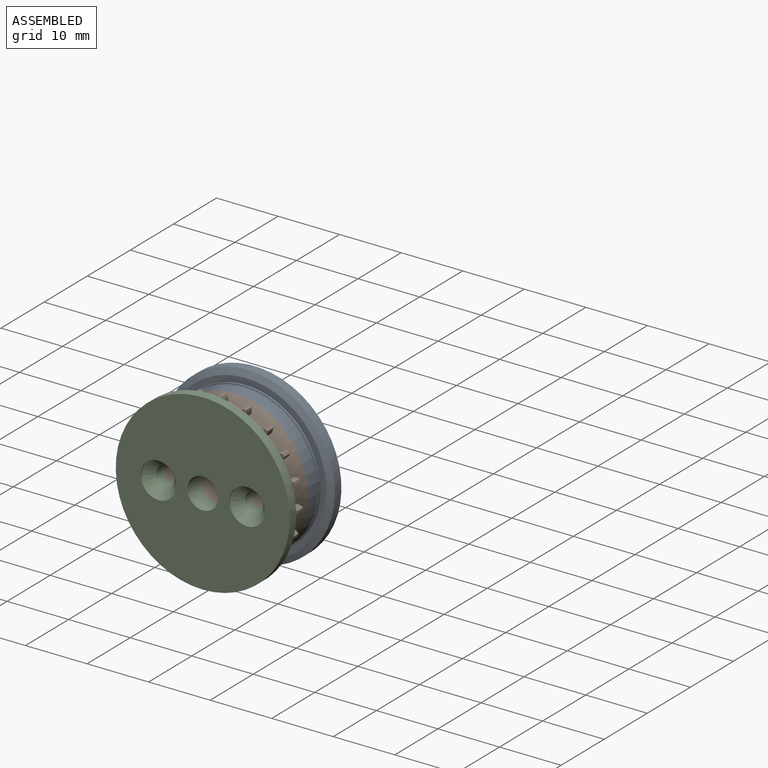
[diagram: assembled view]
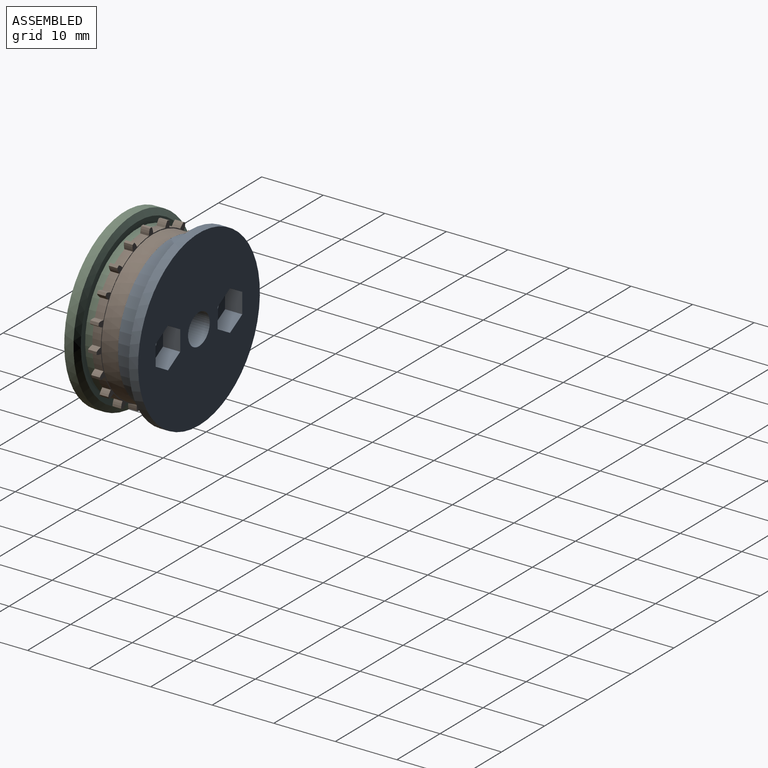
[diagram: assembled view, second angle]
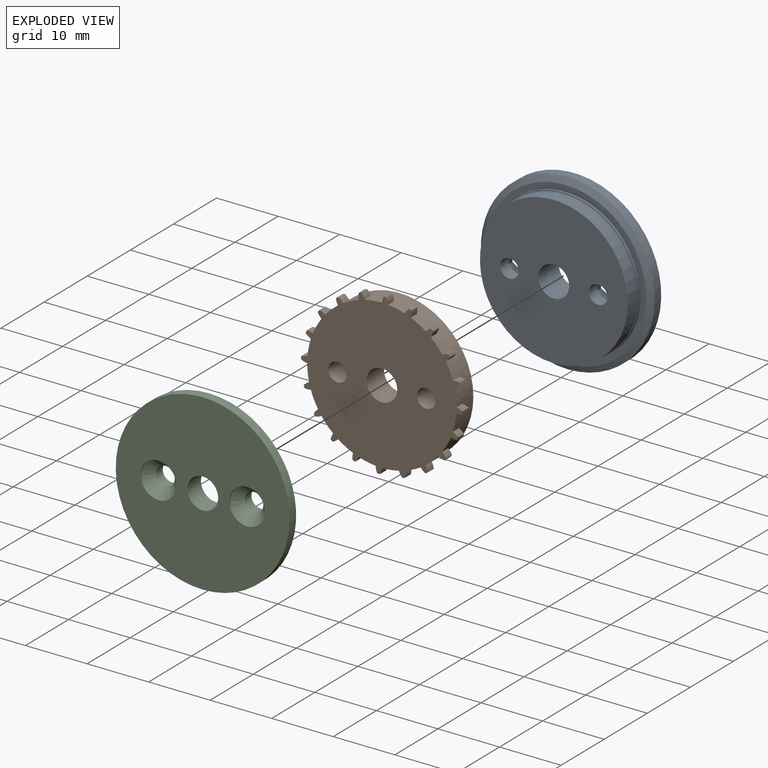
[diagram: exploded view]
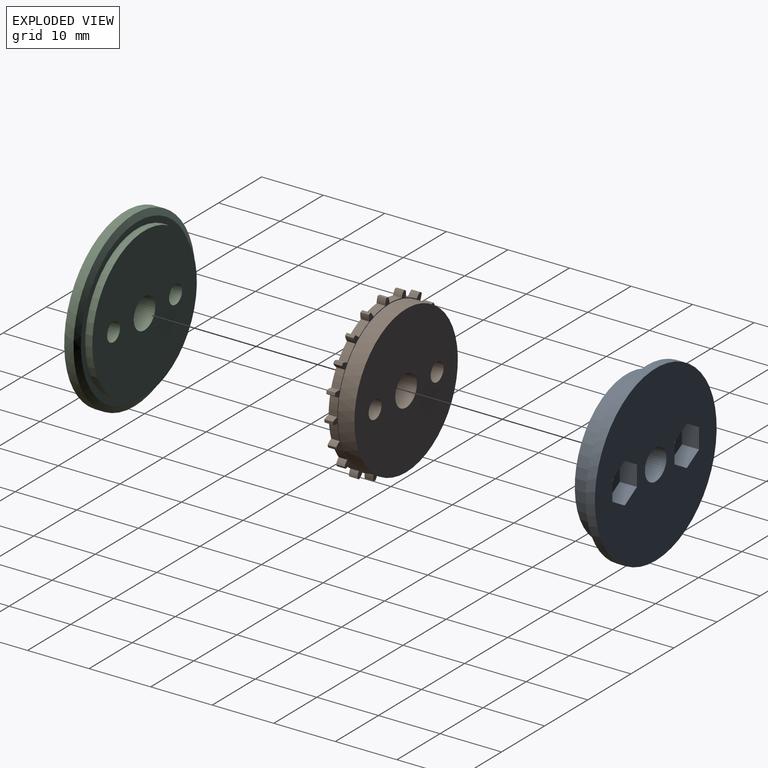
[diagram: exploded view, second angle]
ASSEMBLY  parts=3 mates=2
PART A: 25 faces, bbox 28.3x4.8x28.3 mm
  f0: plane 28.26x28.26mm, normal (0,1,0), area 551.1mm2, adj f1,f7,f9,f10,f11,f12,f13,f14
  f1: cylinder r=14.13mm len=28.26mm, axis (0,-1,0), area 133.1mm2, adj f0,f8
  f2: plane 26.26x26.26mm, normal (0,-1,0), area 79.3mm2, adj f3,f8
  f3: cylinder r=12.13mm len=24.26mm, axis (0,-1,0), area 30.5mm2, adj f2,f4
  f4: plane 24.26x24.26mm, normal (0,-1,0), area 9.7mm2, adj f3,f5
  f5: cylinder r=12mm len=24mm, axis (0,-1,0), area 177.2mm2, adj f4,f6
  f6: plane 24x24mm, normal (0,-1,0), area 418.6mm2, adj f5,f7,f23,f24
  f7: cylinder r=2.5mm len=5mm, axis (0,1,0), area 74.6mm2, adj f0,f6
  f8: cone r=13.13mm half-angle=63.4deg, axis (0,1,0), area 95.7mm2, adj f1,f2
  f9: plane 2.85x2.8mm, normal (-0.5,0,0.87), area 9.2mm2, adj f0,f10,f14,f15
  f10: plane 2.85x2.8mm, normal (0.5,0,0.87), area 9.2mm2, adj f0,f9,f11,f15
  f11: plane 3.29x2.8mm, normal (1,0,0), area 9.2mm2, adj f0,f10,f12,f15
  f12: plane 2.85x2.8mm, normal (0.5,0,-0.87), area 9.2mm2, adj f0,f11,f13,f15
  f13: plane 2.85x2.8mm, normal (-0.5,0,-0.87), area 9.2mm2, adj f0,f12,f14,f15
  f14: plane 3.29x2.8mm, normal (-1,0,0), area 9.2mm2, adj f0,f9,f13,f15
  f15: plane 6.58x5.7mm, normal (0,1,0), area 21.1mm2, adj f9,f10,f11,f12,f13,f14,f23
  f16: plane 2.85x2.8mm, normal (-0.5,0,-0.87), area 9.2mm2, adj f0,f17,f21,f22
  f17: plane 3.29x2.8mm, normal (-1,0,0), area 9.2mm2, adj f0,f16,f18,f22
  f18: plane 2.85x2.8mm, normal (-0.5,0,0.87), area 9.2mm2, adj f0,f17,f19,f22
  f19: plane 2.85x2.8mm, normal (0.5,0,0.87), area 9.2mm2, adj f0,f18,f20,f22
  f20: plane 3.29x2.8mm, normal (1,0,0), area 9.2mm2, adj f0,f19,f21,f22
  f21: plane 2.85x2.8mm, normal (0.5,0,-0.87), area 9.2mm2, adj f0,f16,f20,f22
  f22: plane 6.58x5.7mm, normal (0,1,0), area 21.1mm2, adj f16,f17,f18,f19,f20,f21,f24
  f23: cylinder r=1.5mm len=3mm, axis (0,1,0), area 18.4mm2, adj f6,f15
  f24: cylinder r=1.5mm len=3mm, axis (0,1,0), area 18.4mm2, adj f6,f22
PART B: 87 faces, bbox 26.2x4.1x26.2 mm
  f0: cylinder r=2.43mm len=1.4mm, axis (0,-1,0), area 1.5mm2, adj f1,f79,f80,f81
  f1: cylinder r=12.13mm len=2.55mm, axis (0,-1,0), area 3.9mm2, adj f0,f2,f80,f81
  f2: cylinder r=2.43mm len=1.4mm, axis (0,-1,0), area 1.5mm2, adj f1,f3,f80,f81
  f3: cylinder r=13.13mm len=1.4mm, axis (0,-1,0), area 0.6mm2, adj f2,f4,f80,f81
  f4: cylinder r=2.43mm len=1.4mm, axis (0,-1,0), area 1.5mm2, adj f3,f5,f80,f81
  f5: cylinder r=12.13mm len=2.06mm, axis (0,-1,0), area 3.9mm2, adj f4,f6,f80,f81
  f6: cylinder r=2.43mm len=1.4mm, axis (0,-1,0), area 1.5mm2, adj f5,f7,f80,f81
  f7: cylinder r=13.13mm len=1.4mm, axis (0,-1,0), area 0.6mm2, adj f6,f8,f80,f81
  f8: cylinder r=2.43mm len=1.4mm, axis (0,-1,0), area 1.5mm2, adj f7,f9,f80,f81
  f9: cylinder r=12.13mm len=2.44mm, axis (0,-1,0), area 3.9mm2, adj f8,f10,f80,f81
  f10: cylinder r=2.43mm len=1.4mm, axis (0,-1,0), area 1.5mm2, adj f9,f11,f80,f81
  f11: cylinder r=13.13mm len=1.4mm, axis (0,-1,0), area 0.6mm2, adj f10,f12,f80,f81
  f12: cylinder r=2.43mm len=1.4mm, axis (0,-1,0), area 1.5mm2, adj f11,f13,f80,f81
  f13: cylinder r=12.13mm len=2.75mm, axis (0,-1,0), area 3.9mm2, adj f12,f14,f80,f81
  f14: cylinder r=2.43mm len=1.4mm, axis (0,-1,0), area 1.5mm2, adj f13,f15,f80,f81
  f15: cylinder r=13.13mm len=1.4mm, axis (0,-1,0), area 0.6mm2, adj f14,f16,f80,f81
  f16: cylinder r=2.43mm len=1.4mm, axis (0,-1,0), area 1.5mm2, adj f15,f17,f80,f81
  f17: cylinder r=12.13mm len=2.79mm, axis (0,-1,0), area 3.9mm2, adj f16,f18,f80,f81
  f18: cylinder r=2.43mm len=1.4mm, axis (0,-1,0), area 1.5mm2, adj f17,f19,f80,f81
  f19: cylinder r=13.13mm len=1.4mm, axis (0,-1,0), area 0.6mm2, adj f18,f20,f80,f81
  f20: cylinder r=2.43mm len=1.4mm, axis (0,-1,0), area 1.5mm2, adj f19,f21,f80,f81
  f21: cylinder r=12.13mm len=2.55mm, axis (0,-1,0), area 3.9mm2, adj f20,f22,f80,f81
  f22: cylinder r=2.43mm len=1.4mm, axis (0,-1,0), area 1.5mm2, adj f21,f23,f80,f81
  f23: cylinder r=13.13mm len=1.4mm, axis (0,-1,0), area 0.6mm2, adj f22,f24,f80,f81
  f24: cylinder r=2.43mm len=1.4mm, axis (0,-1,0), area 1.5mm2, adj f23,f25,f80,f81
  f25: cylinder r=12.13mm len=2.06mm, axis (0,-1,0), area 3.9mm2, adj f24,f26,f80,f81
  f26: cylinder r=2.43mm len=1.4mm, axis (0,-1,0), area 1.5mm2, adj f25,f27,f80,f81
  f27: cylinder r=13.13mm len=1.4mm, axis (0,-1,0), area 0.6mm2, adj f26,f28,f80,f81
  f28: cylinder r=2.43mm len=1.4mm, axis (0,-1,0), area 1.5mm2, adj f27,f29,f80,f81
  f29: cylinder r=12.13mm len=2.44mm, axis (0,-1,0), area 3.9mm2, adj f28,f30,f80,f81
  f30: cylinder r=2.43mm len=1.4mm, axis (0,-1,0), area 1.5mm2, adj f29,f31,f80,f81
  f31: cylinder r=13.13mm len=1.4mm, axis (0,-1,0), area 0.6mm2, adj f30,f32,f80,f81
  f32: cylinder r=2.43mm len=1.4mm, axis (0,-1,0), area 1.5mm2, adj f31,f33,f80,f81
  f33: cylinder r=12.13mm len=2.75mm, axis (0,-1,0), area 3.9mm2, adj f32,f34,f80,f81
  f34: cylinder r=2.43mm len=1.4mm, axis (0,-1,0), area 1.5mm2, adj f33,f35,f80,f81
  f35: cylinder r=13.13mm len=1.4mm, axis (0,-1,0), area 0.6mm2, adj f34,f36,f80,f81
  f36: cylinder r=2.43mm len=1.4mm, axis (0,-1,0), area 1.5mm2, adj f35,f37,f80,f81
  f37: cylinder r=12.13mm len=2.79mm, axis (0,-1,0), area 3.9mm2, adj f36,f38,f80,f81
  f38: cylinder r=2.43mm len=1.4mm, axis (0,-1,0), area 1.5mm2, adj f37,f39,f80,f81
  f39: cylinder r=13.13mm len=1.4mm, axis (0,-1,0), area 0.6mm2, adj f38,f40,f80,f81
  f40: cylinder r=2.43mm len=1.4mm, axis (0,-1,0), area 1.5mm2, adj f39,f41,f80,f81
  f41: cylinder r=12.13mm len=2.55mm, axis (0,-1,0), area 3.9mm2, adj f40,f42,f80,f81
  f42: cylinder r=2.43mm len=1.4mm, axis (0,-1,0), area 1.5mm2, adj f41,f43,f80,f81
  f43: cylinder r=13.13mm len=1.4mm, axis (0,-1,0), area 0.6mm2, adj f42,f44,f80,f81
  f44: cylinder r=2.43mm len=1.4mm, axis (0,-1,0), area 1.5mm2, adj f43,f45,f80,f81
  f45: cylinder r=12.13mm len=2.06mm, axis (0,-1,0), area 3.9mm2, adj f44,f46,f80,f81
  f46: cylinder r=2.43mm len=1.4mm, axis (0,-1,0), area 1.5mm2, adj f45,f47,f80,f81
  f47: cylinder r=13.13mm len=1.4mm, axis (0,-1,0), area 0.6mm2, adj f46,f48,f80,f81
  f48: cylinder r=2.43mm len=1.4mm, axis (0,-1,0), area 1.5mm2, adj f47,f49,f80,f81
  f49: cylinder r=12.13mm len=2.44mm, axis (0,-1,0), area 3.9mm2, adj f48,f50,f80,f81
  f50: cylinder r=2.43mm len=1.4mm, axis (0,-1,0), area 1.5mm2, adj f49,f51,f80,f81
  f51: cylinder r=13.13mm len=1.4mm, axis (0,-1,0), area 0.6mm2, adj f50,f52,f80,f81
  f52: cylinder r=2.43mm len=1.4mm, axis (0,-1,0), area 1.5mm2, adj f51,f53,f80,f81
  f53: cylinder r=12.13mm len=2.75mm, axis (0,-1,0), area 3.9mm2, adj f52,f54,f80,f81
  f54: cylinder r=2.43mm len=1.4mm, axis (0,-1,0), area 1.5mm2, adj f53,f55,f80,f81
  f55: cylinder r=13.13mm len=1.4mm, axis (0,-1,0), area 0.6mm2, adj f54,f56,f80,f81
  f56: cylinder r=2.43mm len=1.4mm, axis (0,-1,0), area 1.5mm2, adj f55,f57,f80,f81
  f57: cylinder r=12.13mm len=2.79mm, axis (0,-1,0), area 3.9mm2, adj f56,f58,f80,f81
  f58: cylinder r=2.43mm len=1.4mm, axis (0,-1,0), area 1.5mm2, adj f57,f59,f80,f81
  f59: cylinder r=13.13mm len=1.4mm, axis (0,-1,0), area 0.6mm2, adj f58,f60,f80,f81
  f60: cylinder r=2.43mm len=1.4mm, axis (0,-1,0), area 1.5mm2, adj f59,f61,f80,f81
  f61: cylinder r=12.13mm len=2.55mm, axis (0,-1,0), area 3.9mm2, adj f60,f62,f80,f81
  f62: cylinder r=2.43mm len=1.4mm, axis (0,-1,0), area 1.5mm2, adj f61,f63,f80,f81
  f63: cylinder r=13.13mm len=1.4mm, axis (0,-1,0), area 0.6mm2, adj f62,f64,f80,f81
  f64: cylinder r=2.43mm len=1.4mm, axis (0,-1,0), area 1.5mm2, adj f63,f65,f80,f81
  f65: cylinder r=12.13mm len=2.06mm, axis (0,-1,0), area 3.9mm2, adj f64,f66,f80,f81
  f66: cylinder r=2.43mm len=1.4mm, axis (0,-1,0), area 1.5mm2, adj f65,f67,f80,f81
  f67: cylinder r=13.13mm len=1.4mm, axis (0,-1,0), area 0.6mm2, adj f66,f68,f80,f81
  f68: cylinder r=2.43mm len=1.4mm, axis (0,-1,0), area 1.5mm2, adj f67,f69,f80,f81
  f69: cylinder r=12.13mm len=2.44mm, axis (0,-1,0), area 3.9mm2, adj f68,f70,f80,f81
  f70: cylinder r=2.43mm len=1.4mm, axis (0,-1,0), area 1.5mm2, adj f69,f71,f80,f81
  f71: cylinder r=13.13mm len=1.4mm, axis (0,-1,0), area 0.6mm2, adj f70,f72,f80,f81
  f72: cylinder r=2.43mm len=1.4mm, axis (0,-1,0), area 1.5mm2, adj f71,f73,f80,f81
  f73: cylinder r=12.13mm len=2.75mm, axis (0,-1,0), area 3.9mm2, adj f72,f74,f80,f81
  f74: cylinder r=2.43mm len=1.4mm, axis (0,-1,0), area 1.5mm2, adj f73,f75,f80,f81
  f75: cylinder r=13.13mm len=1.4mm, axis (0,-1,0), area 0.6mm2, adj f74,f76,f80,f81
  f76: cylinder r=2.43mm len=1.4mm, axis (0,-1,0), area 1.5mm2, adj f75,f77,f80,f81
  f77: cylinder r=12.13mm len=2.79mm, axis (0,-1,0), area 3.9mm2, adj f76,f78,f80,f81
  f78: cylinder r=2.43mm len=1.4mm, axis (0,-1,0), area 1.5mm2, adj f77,f79,f80,f81
  f79: cylinder r=13.13mm len=1.4mm, axis (0,-1,0), area 0.6mm2, adj f0,f78,f80,f81
  f80: plane 26.25x26.25mm, normal (0,1,0), area 25.8mm2, adj f0,f1,f2,f3,f4,f5,f6,f7
  f81: plane 26.25x26.25mm, normal (0,-1,0), area 444.5mm2, adj f0,f1,f2,f3,f4,f5,f6,f7
  f82: cylinder r=12mm len=24mm, axis (0,-1,0), area 202.8mm2, adj f80,f83
  f83: plane 24x24mm, normal (0,1,0), area 418.6mm2, adj f82,f84,f85,f86
  f84: cylinder r=2.5mm len=5mm, axis (0,-1,0), area 64.2mm2, adj f81,f83
  f85: cylinder r=1.5mm len=4.09mm, axis (0,-1,0), area 38.5mm2, adj f81,f83
  f86: cylinder r=1.5mm len=4.09mm, axis (0,-1,0), area 38.5mm2, adj f81,f83
PART C: 13 faces, bbox 28.3x3.2x28.3 mm
  f0: cylinder r=14.13mm len=28.26mm, axis (0,-1,0), area 133.1mm2, adj f1,f5
  f1: plane 28.26x28.26mm, normal (0,-1,0), area 554.6mm2, adj f0,f6,f11,f12
  f2: plane 24.26x24.26mm, normal (0,1,0), area 428.3mm2, adj f3,f6,f7,f9
  f3: cylinder r=12.13mm len=24.26mm, axis (0,-1,0), area 88.4mm2, adj f2,f4
  f4: plane 26.26x26.26mm, normal (0,1,0), area 79.3mm2, adj f3,f5
  f5: cone r=14.13mm half-angle=63.4deg, axis (0,-1,0), area 95.7mm2, adj f0,f4
  f6: cylinder r=2.5mm len=5mm, axis (0,-1,0), area 49.6mm2, adj f1,f2
  f7: cylinder r=1.5mm len=3mm, axis (0,-1,0), area 14.2mm2, adj f2,f8
  f8: cone r=1.5mm half-angle=45deg, axis (0,-1,0), area 27.4mm2, adj f7,f11
  f9: cylinder r=1.5mm len=3mm, axis (0,-1,0), area 14.2mm2, adj f2,f10
  f10: cone r=1.5mm half-angle=45deg, axis (0,-1,0), area 27.4mm2, adj f9,f12
  f11: cylinder r=2.9mm len=5.8mm, axis (0,1,0), area 4.6mm2, adj f1,f8
  f12: cylinder r=2.9mm len=5.8mm, axis (0,1,0), area 4.6mm2, adj f1,f10
PLACE A t=(0,4.09,0)mm
PLACE B at identity fixed
PLACE C at identity
MATE fastened C.f0 <-> B.f82  axis (0,1,0) through (0,0,0)mm
MATE fastened A.f1 <-> B.f82  axis (0,-1,0) through (0,4.09,0)mm
